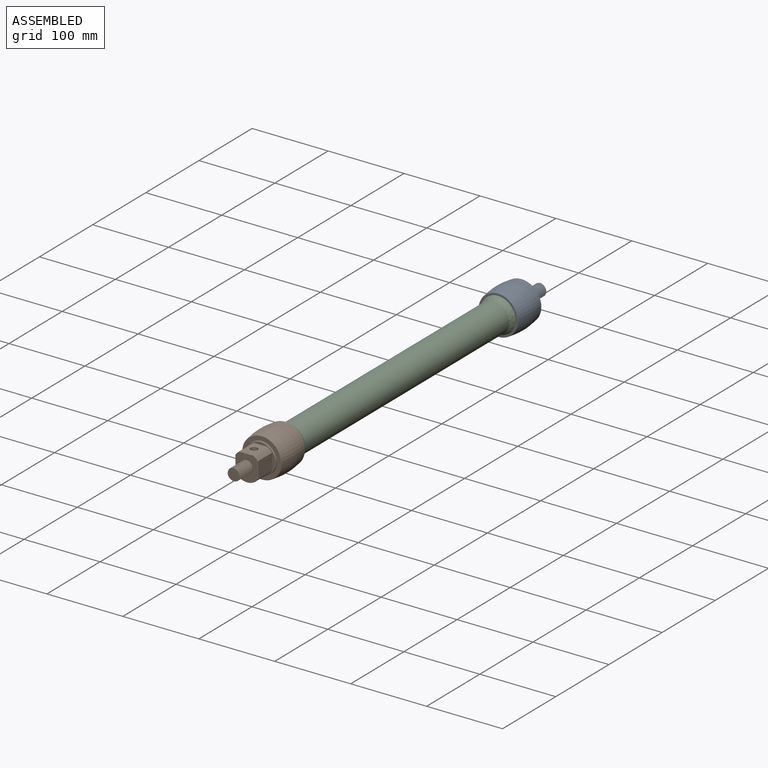
[diagram: assembled view]
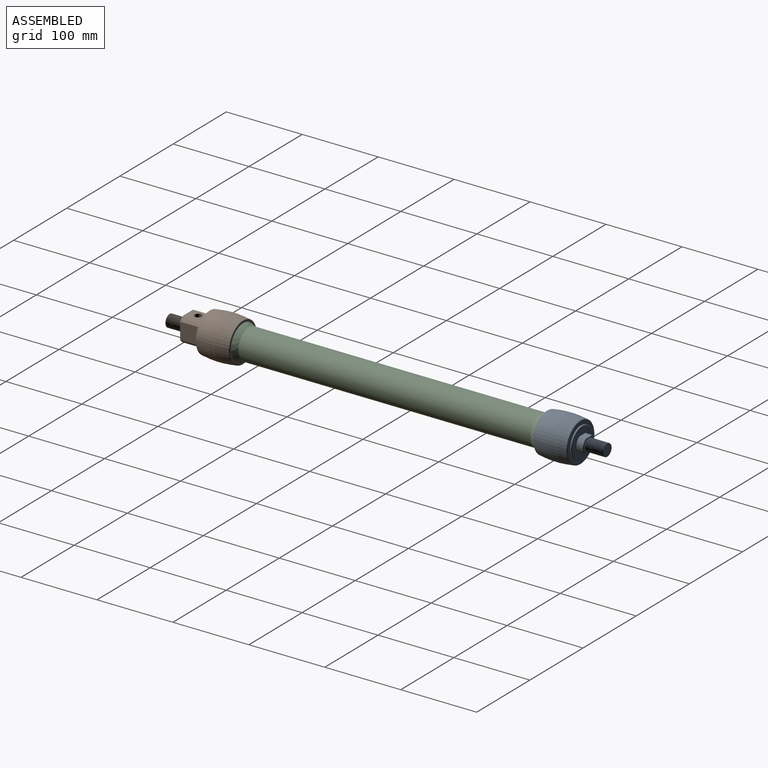
[diagram: assembled view, second angle]
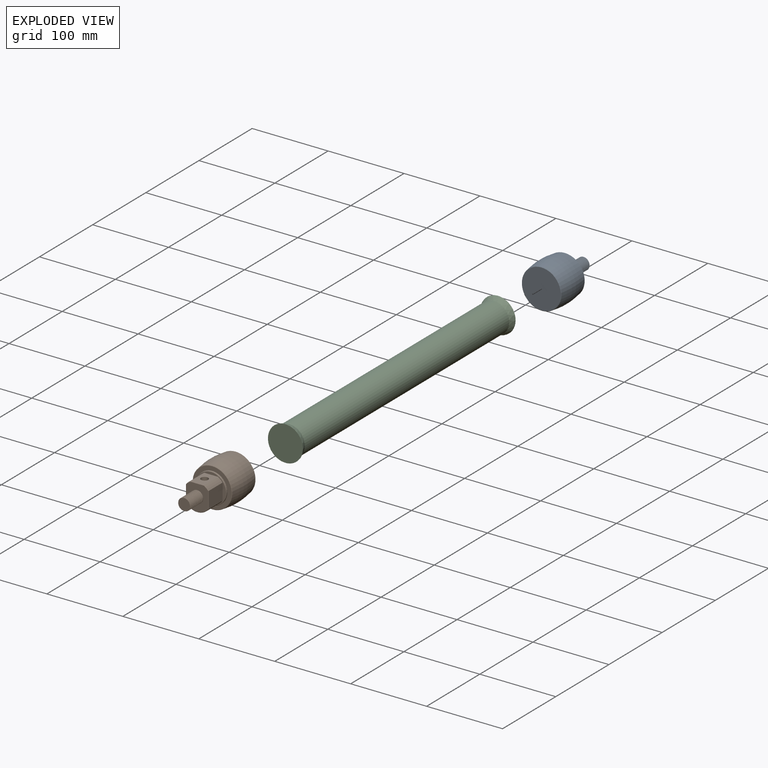
[diagram: exploded view]
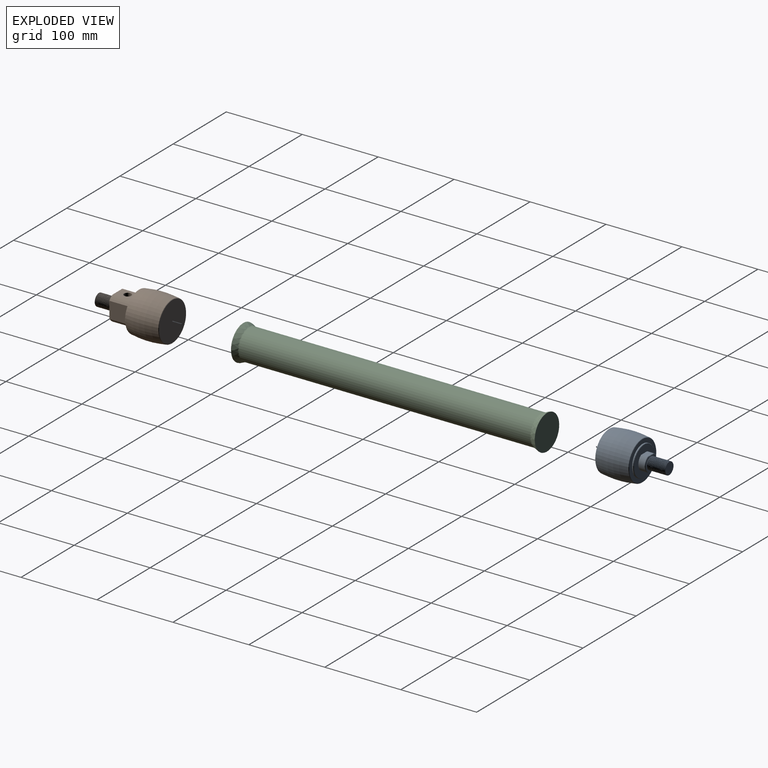
[diagram: exploded view, second angle]
ASSEMBLY  parts=3 mates=2
PART A: 22 faces, bbox 80.4x56.5x56.5 mm
  f0: cylinder r=8mm len=24mm, axis (1,0,0), area -238.7mm2, adj f3,f9,f12,f13,f14
  f1: cylinder r=11mm len=19mm, axis (1,0,0), area 194.9mm2, adj f8,f10,f11,f21
  f2: cylinder r=11mm len=19mm, axis (1,0,0), area 194.9mm2, adj f8,f10,f11,f18
  f3: plane 21x18mm, normal (-1,0,0), area 123.3mm2, adj f0,f18,f19,f20,f21
  f4: plane 51.13x51.13mm, normal (1,0,0), area 2053.4mm2, adj f15
  f5: revolved ~56x56mm, area 7518.4mm2, adj f15,f16
  f6: plane 51.13x51.13mm, normal (-1,0,0), area 796.8mm2, adj f7,f16
  f7: cylinder r=20mm len=40mm, axis (1,0,0), area 188.5mm2, adj f6,f17
  f8: plane 39x39mm, normal (-1,0,0), area 837mm2, adj f1,f2,f10,f11,f17
  f9: plane 16.04x16.03mm, normal (-1,0,0), area 188.6mm2, adj f0,f12,f13
  f10: plane 11.09x8.5mm, normal (0,0,-1), area 94.3mm2, adj f1,f2,f8,f19
  f11: plane 11.09x8.5mm, normal (0,0,1), area 94.3mm2, adj f1,f2,f8,f20
  f12: bspline ~24.09x18.48mm, area 1073.2mm2, adj f0,f9,f13,f14
  f13: bspline ~24.31x18.48mm, area 1082.4mm2, adj f0,f9,f12,f14
  f14: plane 0.63x0.54mm, normal (0,0,-1), area 0.2mm2, adj f0,f12,f13
  f15: cone r=25.57mm half-angle=49deg, axis (-1,0,0), area 106.3mm2, adj f4,f5
  f16: cone r=26.06mm half-angle=49deg, axis (1,0,0), area 106.3mm2, adj f5,f6
  f17: cone r=20mm half-angle=45deg, axis (1,0,0), area 87.7mm2, adj f7,f8
  f18: cone r=11mm half-angle=45deg, axis (1,0,0), area 15.8mm2, adj f2,f3,f19,f20
  f19: plane 11.09x0.5mm, normal (-0.71,0,-0.71), area 7.7mm2, adj f3,f10,f18,f21
  f20: plane 11.09x0.5mm, normal (-0.71,0,0.71), area 7.7mm2, adj f3,f11,f18,f21
  f21: cone r=11mm half-angle=45deg, axis (1,0,0), area 15.8mm2, adj f1,f3,f19,f20
PART B: 28 faces, bbox 56.5x98x56.5 mm
  f0: plane 51.13x51.13mm, normal (0,-1,0), area 796.8mm2, adj f1,f24
  f1: cylinder r=20mm len=40mm, axis (0,1,0), area 188.5mm2, adj f0,f2
  f2: cone r=19.5mm half-angle=45deg, axis (0,1,0), area 87.7mm2, adj f1,f3
  f3: plane 39x39mm, normal (0,-1,0), area 252mm2, adj f2,f4,f17,f20,f21,f22,f23
  f4: cylinder r=18.5mm len=25.9mm, axis (0,1,0), area 206.6mm2, adj f3,f5,f17,f23
  f5: cone r=18mm half-angle=45deg, axis (0,1,0), area 5.5mm2, adj f4,f6,f10,f16
  f6: plane 21.66x0.5mm, normal (0.71,-0.71,0), area 15.2mm2, adj f5,f7,f10,f23
  f7: cone r=18mm half-angle=45deg, axis (0,1,0), area 24.3mm2, adj f6,f8,f10,f22
  f8: plane 21.66x0.5mm, normal (-0.71,-0.71,0), area 15.2mm2, adj f7,f9,f10,f21
  f9: cone r=18mm half-angle=45deg, axis (0,1,0), area 5.5mm2, adj f8,f10,f16,f20
  f10: plane 33.61x29mm, normal (0,-1,0), area 686.1mm2, adj f5,f6,f7,f8,f9,f11,f15,f16
  f11: cylinder r=8mm len=24.2mm, axis (0,1,0), area 113.1mm2, adj f10,f12,f13,f14,f15
  f12: bspline ~24.31x18.48mm, area 1079.1mm2, adj f11,f13,f14,f15
  f13: plane 0.63x0.52mm, normal (-0.95,0,0.31), area 0.2mm2, adj f11,f12,f15
  f14: plane 16.04x16.03mm, normal (0,-1,0), area 188.6mm2, adj f11,f12,f15
  f15: bspline ~24.53x18.48mm, area 1094.4mm2, adj f10,f11,f12,f13,f14
  f16: plane 18.2x0.5mm, normal (0,-0.71,0.71), area 12.8mm2, adj f5,f9,f10,f17
  f17: plane 25.9x18.2mm, normal (0,0,1), area 400.1mm2, adj f3,f4,f16,f18,f20
  f18: cylinder r=4.76mm len=26mm, axis (0,0,1), area 778mm2, adj f17,f19
  f19: plane 9.53x9.53mm, normal (0,0,1), area 71.3mm2, adj f18
  f20: cylinder r=18.5mm len=25.9mm, axis (0,1,0), area 206.6mm2, adj f3,f9,f17,f21
  f21: plane 25.9x21.66mm, normal (-1,0,0), area 560.9mm2, adj f3,f8,f20,f22
  f22: cylinder r=18.5mm len=30mm, axis (0,1,0), area 906.1mm2, adj f3,f7,f21,f23
  f23: plane 25.9x21.66mm, normal (1,0,0), area 560.9mm2, adj f3,f4,f6,f22
  f24: cone r=25.57mm half-angle=49deg, axis (0,1,0), area 106.3mm2, adj f0
  f25: plane 51.13x51.13mm, normal (0,-1,0), area 2053.4mm2, adj f26
  f26: cone r=26.06mm half-angle=49deg, axis (0,-1,0), area 106.3mm2, adj f25
  f27: revolved ~56x56mm, area 15036.8mm2
PART C: 5 faces, bbox 400x46x46 mm
  f0: cylinder r=20mm len=384mm, axis (-1,0,0), area 48254.9mm2, adj f1,f4
  f1: revolved ~46x46mm, area 1167mm2, adj f0,f2
  f2: plane 46x46mm, normal (-1,0,0), area 1661.9mm2, adj f1
  f3: plane 46x46mm, normal (1,0,0), area 1661.9mm2, adj f4
  f4: revolved ~46x46mm, area 1167mm2, adj f0,f3
PLACE A rot(axis=(0.71,-0.71,0),180deg) t=(-64.24,397.5,-21.29)mm
PLACE B t=(-64.24,-2.5,-21.29)mm fixed
PLACE C rot(axis=(0.24,-0.24,-0.94),93.6deg) t=(-64.24,197.5,-21.29)mm
MATE planar C.f0 <-> A.f0  axis (0,1,0) through (-64.24,397.5,-21.29)mm
MATE cylindrical B.f1 <-> C.f0  axis (0,-1,0) through (-64.24,-2.93,-21.29)mm
